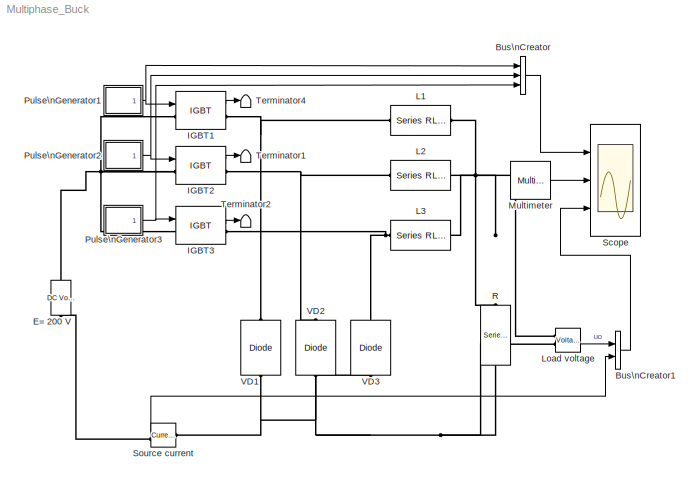
MODEL Multiphase_Buck
KIND model
BLOCK [BusCreator] Bus\nCreator
  DialogController = Simulink.DDGSource_Bus
  DisplayOption = bar
  Inputs = 3
  Ports = [3, 1]
BLOCK [BusCreator] Bus\nCreator1
  DialogController = Simulink.DDGSource_Bus
  DisplayOption = bar
  Inputs = 2
  Ports = [2, 1]
BLOCK [Reference] E= 200 V  REF=powerlib/Electrical\nSources/DC Voltage Source
  Amplitude = 200
  AttributesFormatString = \\n
  Description = source block
  Measurements = None
  Ports = [0, 0, 0, 0, 0, 1, 1]
  ShowPortLabels = on
  SourceBlock = powerlib/Electrical\nSources/DC Voltage Source
  SourceType = DC Voltage Source
BLOCK [Reference] IGBT1  REF=powerlib/Power\nElectronics/IGBT
  AttributesFormatString = \\n
  Cs = 1e-7
  IC = 0
  Lon = 1e-6
  Measurements = on
  Ports = [1, 1, 0, 0, 0, 1, 1]
  Ron = 0.5
  Rs = 10
  ShowPortLabels = on
  SourceBlock = powerlib/Power\nElectronics/IGBT
  SourceType = IGBT
  Tf = 1e-6
  Tt = 1e-6
  Vf = 0
BLOCK [Reference] IGBT2  REF=powerlib/Power\nElectronics/IGBT
  AttributesFormatString = \\n
  Cs = 1e-7
  IC = 0
  Lon = 1e-6
  Measurements = on
  Ports = [1, 1, 0, 0, 0, 1, 1]
  Ron = 0.5
  Rs = 10
  ShowPortLabels = on
  SourceBlock = powerlib/Power\nElectronics/IGBT
  SourceType = IGBT
  Tf = 1e-6
  Tt = 1e-6
  Vf = 0
BLOCK [Reference] IGBT3  REF=powerlib/Power\nElectronics/IGBT
  AttributesFormatString = \\n
  Cs = 1e-7
  IC = 0
  Lon = 1e-6
  Measurements = on
  Ports = [1, 1, 0, 0, 0, 1, 1]
  Ron = 0.5
  Rs = 10
  ShowPortLabels = on
  SourceBlock = powerlib/Power\nElectronics/IGBT
  SourceType = IGBT
  Tf = 1e-6
  Tt = 1e-6
  Vf = 0
BLOCK [Reference] L1  REF=powerlib/Elements/Series RLC Branch
  AttributesFormatString = \\n
  Capacitance = inf
  Inductance = 5e-03
  LConnTagsString = __new0
  LeftPortType = p1
  Measurements = Branch current
  PhysicalDomain = powersysdomain
  Ports = [0, 0, 0, 0, 0, 1, 1]
  RConnTagsString = __new0
  Resistance = 0
  RightPortType = p1
  SourceBlock = powerlib/Elements/Series RLC Branch
  SourceType = Series RLC Branch
  SubClassName = unknown
BLOCK [Reference] L2  REF=powerlib/Elements/Series RLC Branch
  AttributesFormatString = \\n
  Capacitance = inf
  Inductance = 5e-03
  LConnTagsString = __new0
  LeftPortType = p1
  Measurements = Branch current
  PhysicalDomain = powersysdomain
  Ports = [0, 0, 0, 0, 0, 1, 1]
  RConnTagsString = __new0
  Resistance = 0
  RightPortType = p1
  SourceBlock = powerlib/Elements/Series RLC Branch
  SourceType = Series RLC Branch
  SubClassName = unknown
BLOCK [Reference] L3  REF=powerlib/Elements/Series RLC Branch
  AttributesFormatString = \\n
  Capacitance = inf
  Inductance = 5e-03
  LConnTagsString = __new0
  LeftPortType = p1
  Measurements = Branch current
  PhysicalDomain = powersysdomain
  Ports = [0, 0, 0, 0, 0, 1, 1]
  RConnTagsString = __new0
  Resistance = 0
  RightPortType = p1
  SourceBlock = powerlib/Elements/Series RLC Branch
  SourceType = Series RLC Branch
  SubClassName = unknown
BLOCK [Reference] Load voltage  REF=powerlib/Measurements/Voltage Measurement
  AttributesFormatString = \\n
  OutputType = Magnitude
  PSBequivalent = 0
  PhasorSimulation = off
  Ports = [0, 1, 0, 0, 0, 2]
  ShowPortLabels = on
  SourceBlock = powerlib/Measurements/Voltage Measurement
  SourceType = Voltage Measurement
  Tag = PoWeRsYsTeMmEaSuReMeNt
BLOCK [Reference] Multimeter  REF=powerlib/Measurements/Multimeter
  AxesSetting = [0,0.1,-100,100]
  Display = 0
  Gain = [1 1 1]
  L = 3
  OutputType = Complex
  PSBOutputType = 1
  PSBequivalent = 0
  PhasorSimulation = off
  Ports = [0, 1]
  SavedBlockNames = -11
  ShowPortLabels = on
  SourceBlock = powerlib/Measurements/Multimeter
  SourceType = MultimeterPSB
  sel = [1 2 3]
  yselected = {'Ib: L1','Ib: L2','Ib: L3'};
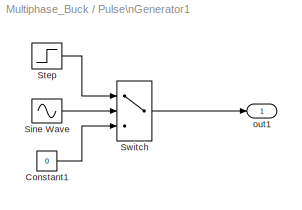
BLOCK [SubSystem] Pulse\nGenerator1
  MaskCallbackString = |||
  MaskDescription = Pulse Generator
  MaskDisplay = plot(0,0,100,100,[95,90,90,75,75,60,60,45,45,30,30,15,15,5],[25,25,75,75,25,25,75,75,25,25,75,75,25,25]); \n                                                                                                          \n  <repeated x3 — deduplicated; at blocks: Pulse\nGenerator1, Pulse\nGenerator2, Pulse\nGenerator3>
  MaskEnableString = on,on,on,on
  MaskHelp = Pulse generator which ensures pulse transitions are hit. Provides a vector of pulses when the height is entered as a vector.  Unmask to see how it works.
  MaskIconFrame = on
  MaskIconOpaque = on
  MaskIconRotate = none
  MaskIconUnits = autoscale
  MaskInitialization = \n
  MaskPromptString = Period (secs):|Duty cycle (% of period):|Amplitude:|Start time:
  MaskStyleString = edit,edit,edit,edit
  MaskTabNameString = ,,,
  MaskToolTipString = on,on,on,on
  MaskTunableValueString = on,on,on,on
  MaskType = Pulse Generator
  MaskValueString = 1e-3|20|1|0
  MaskVarAliasString = ,,,
  MaskVariables = period=@1;duty=@2;amplitude=@3;start=@4;
  MaskVisibilityString = on,on,on,on
  MinAlgLoopOccurrences = off
  Ports = [0, 1]
  RTWSystemCode = Auto
  TreatAsAtomicUnit = off
BLOCK [Constant] Pulse\nGenerator1/Constant1
  Value = 0
BLOCK [Sin] Pulse\nGenerator1/Sine Wave
  Frequency = 2*pi./period
  Phase = -2*pi*(start./period + duty/200 - 1/4)
  Ports = [0, 1]
  SampleTime = 0
  SineType = Time based
BLOCK [Step] Pulse\nGenerator1/Step
  After = amplitude
  SampleTime = 0
  Time = start
BLOCK [Switch] Pulse\nGenerator1/Switch
  Threshold = sin(pi*(0.5 - duty/100))
BLOCK [Outport] Pulse\nGenerator1/out1
  BusOutputAsStruct = off
  IconDisplay = Port number
  InitialOutput = 0
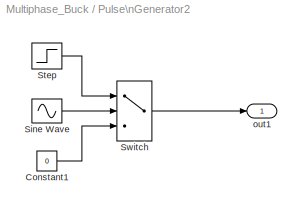
BLOCK [SubSystem] Pulse\nGenerator2
  MaskCallbackString = |||
  MaskDescription = Pulse Generator
  MaskEnableString = on,on,on,on
  MaskHelp = Pulse generator which ensures pulse transitions are hit. Provides a vector of pulses when the height is entered as a vector.  Unmask to see how it works.
  MaskIconFrame = on
  MaskIconOpaque = on
  MaskIconRotate = none
  MaskIconUnits = autoscale
  MaskInitialization = \n
  MaskPromptString = Period (secs):|Duty cycle (% of period):|Amplitude:|Start time:
  MaskStyleString = edit,edit,edit,edit
  MaskTabNameString = ,,,
  MaskToolTipString = on,on,on,on
  MaskTunableValueString = on,on,on,on
  MaskType = Pulse Generator
  MaskValueString = 1e-3|20|1|3.3e-4
  MaskVarAliasString = ,,,
  MaskVariables = period=@1;duty=@2;amplitude=@3;start=@4;
  MaskVisibilityString = on,on,on,on
  MinAlgLoopOccurrences = off
  Ports = [0, 1]
  RTWSystemCode = Auto
  TreatAsAtomicUnit = off
BLOCK [Constant] Pulse\nGenerator2/Constant1
  Value = 0
BLOCK [Sin] Pulse\nGenerator2/Sine Wave
  Frequency = 2*pi./period
  Phase = -2*pi*(start./period + duty/200 - 1/4)
  Ports = [0, 1]
  SampleTime = 0
  SineType = Time based
BLOCK [Step] Pulse\nGenerator2/Step
  After = amplitude
  SampleTime = 0
  Time = start
BLOCK [Switch] Pulse\nGenerator2/Switch
  Threshold = sin(pi*(0.5 - duty/100))
BLOCK [Outport] Pulse\nGenerator2/out1
  BusOutputAsStruct = off
  IconDisplay = Port number
  InitialOutput = 0
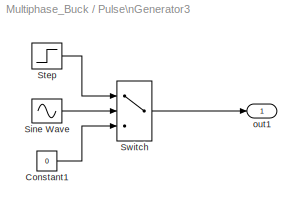
BLOCK [SubSystem] Pulse\nGenerator3
  MaskCallbackString = |||
  MaskDescription = Pulse Generator
  MaskEnableString = on,on,on,on
  MaskHelp = Pulse generator which ensures pulse transitions are hit. Provides a vector of pulses when the height is entered as a vector.  Unmask to see how it works.
  MaskIconFrame = on
  MaskIconOpaque = on
  MaskIconRotate = none
  MaskIconUnits = autoscale
  MaskInitialization = \n
  MaskPromptString = Period (secs):|Duty cycle (% of period):|Amplitude:|Start time:
  MaskStyleString = edit,edit,edit,edit
  MaskTabNameString = ,,,
  MaskToolTipString = on,on,on,on
  MaskTunableValueString = on,on,on,on
  MaskType = Pulse Generator
  MaskValueString = 1e-3|20|1|6.7e-4
  MaskVarAliasString = ,,,
  MaskVariables = period=@1;duty=@2;amplitude=@3;start=@4;
  MaskVisibilityString = on,on,on,on
  MinAlgLoopOccurrences = off
  Ports = [0, 1]
  RTWSystemCode = Auto
  TreatAsAtomicUnit = off
BLOCK [Constant] Pulse\nGenerator3/Constant1
  Value = 0
BLOCK [Sin] Pulse\nGenerator3/Sine Wave
  Frequency = 2*pi./period
  Phase = -2*pi*(start./period + duty/200 - 1/4)
  Ports = [0, 1]
  SampleTime = 0
  SineType = Time based
BLOCK [Step] Pulse\nGenerator3/Step
  After = amplitude
  SampleTime = 0
  Time = start
BLOCK [Switch] Pulse\nGenerator3/Switch
  Threshold = sin(pi*(0.5 - duty/100))
BLOCK [Outport] Pulse\nGenerator3/out1
  BusOutputAsStruct = off
  IconDisplay = Port number
  InitialOutput = 0
BLOCK [Reference] R  REF=powerlib/Elements/Series RLC Branch
  AttributesFormatString = \\n
  Capacitance = inf
  Inductance = 0
  LConnTagsString = __new0
  LeftPortType = p1
  Measurements = None
  PhysicalDomain = powersysdomain
  Ports = [0, 0, 0, 0, 0, 1, 1]
  RConnTagsString = __new0
  Resistance = 2
  RightPortType = p1
  SourceBlock = powerlib/Elements/Series RLC Branch
  SourceType = Series RLC Branch
  SubClassName = unknown
BLOCK [Scope] Scope
  DataFormat = Array
  LimitDataPoints = off
  MaxDataPoints = 500000
  NumInputPorts = 3
  Ports = [3]
  TimeRange = 0.01
  YMax = 2~40~100
  YMin = -1~-10~0
  ZoomMode = xonly
BLOCK [Reference] Source current  REF=powerlib/Measurements/Current Measurement
  OutputType = Complex
  PSBequivalent = 0
  PhasorSimulation = off
  Ports = [0, 1, 0, 0, 0, 1, 1]
  ShowPortLabels = on
  SourceBlock = powerlib/Measurements/Current Measurement
  SourceType = Current Measurement
BLOCK [Terminator] Terminator1
BLOCK [Terminator] Terminator2
BLOCK [Terminator] Terminator4
BLOCK [Reference] VD1  REF=powerlib/Power\nElectronics/Diode
  AttributesFormatString = \\n
  Cs = 0.1e-6
  IC = 0
  Lon = 1e-9
  Measurements = off
  Ports = [0, 0, 0, 0, 0, 1, 1]
  Ron = 0.5
  Rs = inf
  ShowPortLabels = on
  SourceBlock = powerlib/Power\nElectronics/Diode
  SourceType = Diode
  Vf = 0
BLOCK [Reference] VD2  REF=powerlib/Power\nElectronics/Diode
  AttributesFormatString = \\n
  Cs = 0.1e-6
  IC = 0
  Lon = 1e-9
  Measurements = off
  Ports = [0, 0, 0, 0, 0, 1, 1]
  Ron = 0.5
  Rs = inf
  ShowPortLabels = on
  SourceBlock = powerlib/Power\nElectronics/Diode
  SourceType = Diode
  Vf = 0
BLOCK [Reference] VD3  REF=powerlib/Power\nElectronics/Diode
  AttributesFormatString = \\n
  Cs = 0.1e-6
  IC = 0
  Lon = 1e-9
  Measurements = off
  Ports = [0, 0, 0, 0, 0, 1, 1]
  Ron = 0.5
  Rs = inf
  ShowPortLabels = on
  SourceBlock = powerlib/Power\nElectronics/Diode
  SourceType = Diode
  Vf = 0
LINE Bus\nCreator1:1 -> Scope:3
LINE Bus\nCreator:1 -> Scope:1
LINE IGBT1:1 -> Terminator4:1
LINE IGBT2:1 -> Terminator1:1
LINE IGBT3:1 -> Terminator2:1
LINE Load voltage:1 -> Bus\nCreator1:1
LINE Multimeter:1 -> Scope:2
LINE Pulse\nGenerator1/Constant1:1 -> Pulse\nGenerator1/Switch:3
LINE Pulse\nGenerator1/Sine Wave:1 -> Pulse\nGenerator1/Switch:2
LINE Pulse\nGenerator1/Step:1 -> Pulse\nGenerator1/Switch:1
LINE Pulse\nGenerator1/Switch:1 -> Pulse\nGenerator1/out1:1
NET Pulse\nGenerator1:1 -> Bus\nCreator:1, IGBT1:1
LINE Pulse\nGenerator2/Constant1:1 -> Pulse\nGenerator2/Switch:3
LINE Pulse\nGenerator2/Sine Wave:1 -> Pulse\nGenerator2/Switch:2
LINE Pulse\nGenerator2/Step:1 -> Pulse\nGenerator2/Switch:1
LINE Pulse\nGenerator2/Switch:1 -> Pulse\nGenerator2/out1:1
NET Pulse\nGenerator2:1 -> Bus\nCreator:2, IGBT2:1
LINE Pulse\nGenerator3/Constant1:1 -> Pulse\nGenerator3/Switch:3
LINE Pulse\nGenerator3/Sine Wave:1 -> Pulse\nGenerator3/Switch:2
LINE Pulse\nGenerator3/Step:1 -> Pulse\nGenerator3/Switch:1
LINE Pulse\nGenerator3/Switch:1 -> Pulse\nGenerator3/out1:1
NET Pulse\nGenerator3:1 -> Bus\nCreator:3, IGBT3:1
LINE Source current:1 -> Bus\nCreator1:2
PLINE E= 200 V:LConn1 -- Source current:RConn1
PNET net1: E= 200 V:RConn1 -- IGBT1:LConn1 -- IGBT2:LConn1 -- IGBT3:LConn1
PNET net2: IGBT1:RConn1 -- L1:LConn1 -- VD1:RConn1
PNET net3: IGBT2:RConn1 -- L2:LConn1 -- VD2:RConn1
PNET net4: IGBT3:RConn1 -- L3:LConn1 -- VD3:RConn1
PNET net5: L1:RConn1 -- L2:RConn1 -- L3:RConn1 -- Load voltage:LConn1 -- R:LConn1
PNET net6: Load voltage:LConn2 -- R:RConn1 -- Source current:LConn1 -- VD1:LConn1 -- VD2:LConn1 -- VD3:LConn1
note: NET lines group one-source signal fan-out (src -> all destinations, sorted); 1:1 wires keep LINE; PNET lines group multi-terminal physical nets as a canonical sorted terminal list (undirected conserving connections); 2-terminal nets keep the pairwise PLINE form
